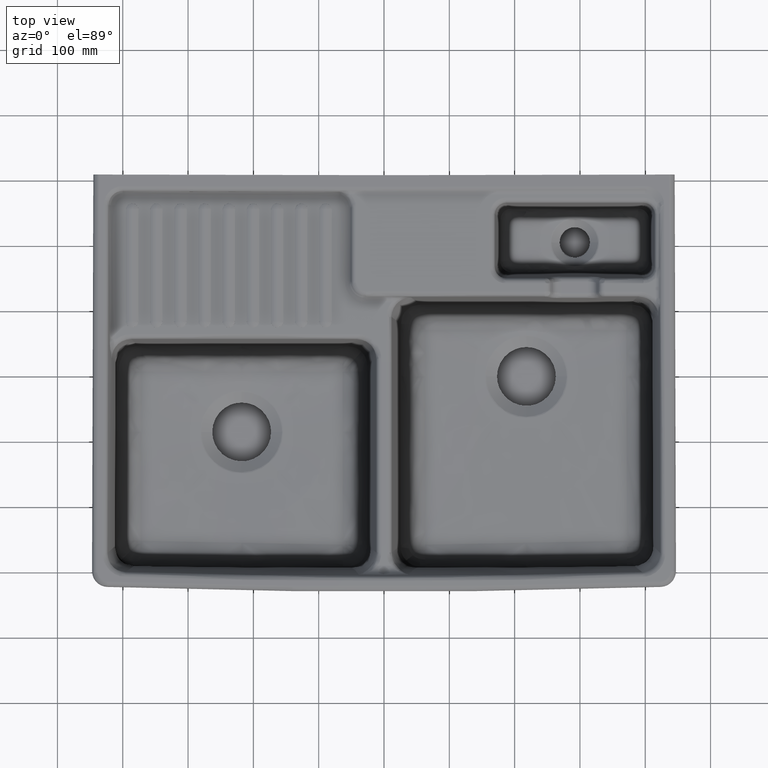
[diagram: clean part render]
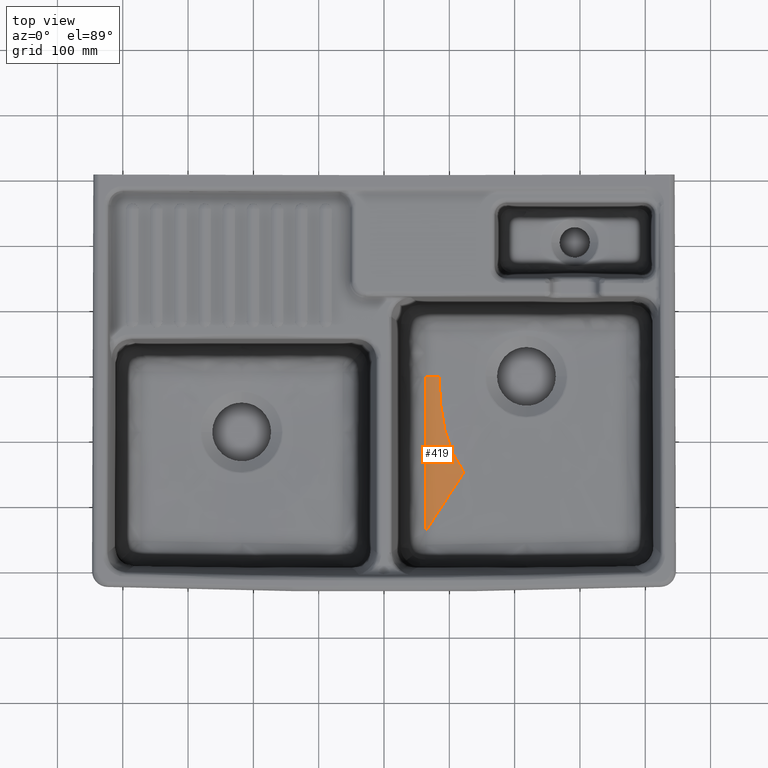
[diagram: same view with one face highlighted and labeled with its STEP entity id]
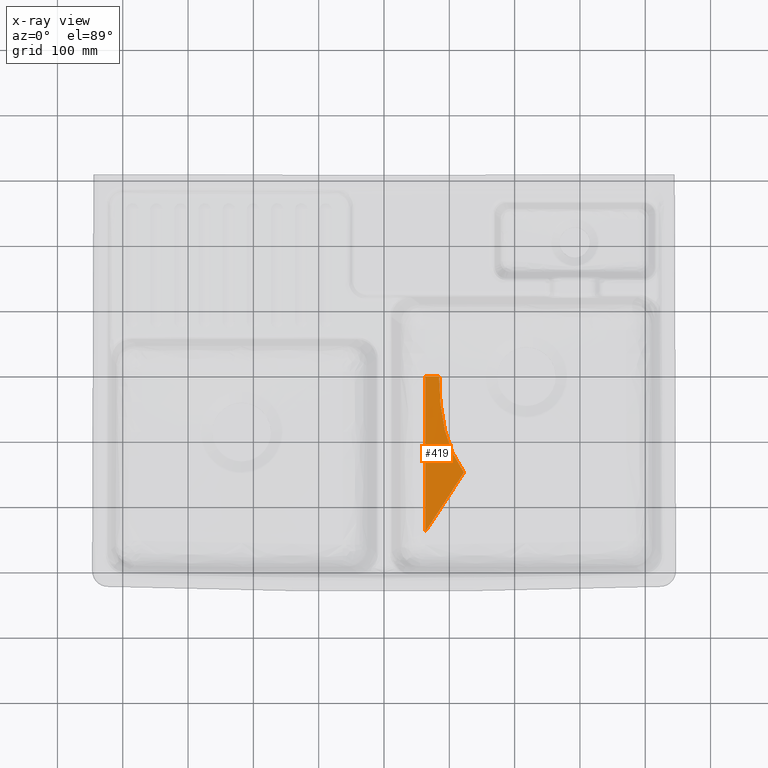
[diagram: x-ray of the same camera — body ghosted, the highlighted face saturated]
A machine part, top view. The second image highlights one B-rep face of the part: STEP entity #419.
The next image is the same camera in x-ray: the body ghosted, the highlighted face saturated — about 0% of this face is hidden behind the body in this view.
In plain terms, the highlighted face is a freeform B-spline surface patch.
Its self-contained STEP definition (entity closure, byte-faithful):
#419=ADVANCED_FACE('',(#1278),#850,.T.);
#850=B_SPLINE_SURFACE_WITH_KNOTS('',4,3,((#24365,#24366,#24367,#24368),
(#24369,#24370,#24371,#24372),(#24373,#24374,#24375,#24376),(#24377,#24378,
#24379,#24380),(#24381,#24382,#24383,#24384)),.UNSPECIFIED.,.F.,.F.,.F.,
(5,5),(4,4),(0.,1.),(0.,1.),.UNSPECIFIED.);
#1278=FACE_OUTER_BOUND('',#1729,.T.);
#1729=EDGE_LOOP('',(#3139,#3140,#3141,#3142));
#3139=ORIENTED_EDGE('',*,*,#5768,.F.);
#3140=ORIENTED_EDGE('',*,*,#5769,.F.);
#3141=ORIENTED_EDGE('',*,*,#5480,.T.);
#3142=ORIENTED_EDGE('',*,*,#5486,.T.);
#4428=VERTEX_POINT('',#9861);
#4597=VERTEX_POINT('',#17666);
#4600=VERTEX_POINT('',#17776);
#4761=VERTEX_POINT('',#24360);
#5480=EDGE_CURVE('',#4597,#4428,#6675,.T.);
#5486=EDGE_CURVE('',#4428,#4600,#6681,.T.);
#5768=EDGE_CURVE('',#4761,#4600,#6963,.T.);
#5769=EDGE_CURVE('',#4597,#4761,#6964,.T.);
#6675=B_SPLINE_CURVE_WITH_KNOTS('',4,(#17661,#17662,#17663,#17664,#17665),
 .UNSPECIFIED.,.F.,.F.,(5,5),(0.,1.),.UNSPECIFIED.);
#6681=B_SPLINE_CURVE_WITH_KNOTS('',3,(#17778,#17779,#17780,#17781),
 .UNSPECIFIED.,.F.,.F.,(4,4),(0.,1.),.UNSPECIFIED.);
#6963=B_SPLINE_CURVE_WITH_KNOTS('',3,(#24342,#24343,#24344,#24345,#24346,
#24347,#24348,#24349,#24350,#24351,#24352,#24353,#24354,#24355,#24356,#24357,
#24358,#24359),.UNSPECIFIED.,.F.,.F.,(4,2,2,2,2,2,2,2,4),(0.,0.125,0.25,
0.375,0.5,0.625,0.75,0.875,1.),.UNSPECIFIED.);
#6964=B_SPLINE_CURVE_WITH_KNOTS('',3,(#24361,#24362,#24363,#24364),
 .UNSPECIFIED.,.F.,.F.,(4,4),(0.,1.),.UNSPECIFIED.);
#9861=CARTESIAN_POINT('',(84.39746,0.,-180.5));
#17661=CARTESIAN_POINT('',(122.35904,-147.10867,-180.5));
#17662=CARTESIAN_POINT('',(99.56619,-117.62495,-180.5));
#17663=CARTESIAN_POINT('',(88.18301,-78.33304,-180.5));
#17664=CARTESIAN_POINT('',(84.39746,-36.65178,-180.5));
#17665=CARTESIAN_POINT('',(84.39746,0.,-180.5));
#17666=CARTESIAN_POINT('',(122.35904,-147.10867,-180.5));
#17776=CARTESIAN_POINT('',(63.2058318317353,0.,-179.158804507215));
#17778=CARTESIAN_POINT('',(84.39746,0.,-180.5));
#17779=CARTESIAN_POINT('',(77.3335780240001,0.,-180.052932056));
#17780=CARTESIAN_POINT('',(70.2697004532674,0.,-179.605865580422));
#17781=CARTESIAN_POINT('',(63.2058255997034,0.,-179.158800573267));
#24342=CARTESIAN_POINT('',(63.2060037305666,-238.093979304146,-177.822298075582));
#24343=CARTESIAN_POINT('',(63.2059886921296,-228.238625039033,-177.962921108554));
#24344=CARTESIAN_POINT('',(63.2059832484374,-219.245785110654,-178.082888659868));
#24345=CARTESIAN_POINT('',(63.2059731494818,-200.992840910293,-178.297266756222));
#24346=CARTESIAN_POINT('',(63.205968655538,-191.74803571615,-178.391596720754));
#24347=CARTESIAN_POINT('',(63.2059549996318,-172.363077120166,-178.562503577156));
#24348=CARTESIAN_POINT('',(63.2059459989727,-162.23822276589,-178.63899988838));
#24349=CARTESIAN_POINT('',(63.2059256557875,-141.339721041235,-178.776671926369));
#24350=CARTESIAN_POINT('',(63.2059144745482,-130.581372688148,-178.83776707235));
#24351=CARTESIAN_POINT('',(63.2058950401036,-109.078106240299,-178.944115244045));
#24352=CARTESIAN_POINT('',(63.2058869481686,-98.3484871325551,-178.989287688839));
#24353=CARTESIAN_POINT('',(63.2058770676267,-77.5216004679957,-179.062732323859));
#24354=CARTESIAN_POINT('',(63.2058754402737,-67.4396318679251,-179.090923933028));
#24355=CARTESIAN_POINT('',(63.205875131719,-48.024696373038,-179.131229593642));
#24356=CARTESIAN_POINT('',(63.2058766117549,-38.7070284046931,-179.143263063894));
#24357=CARTESIAN_POINT('',(63.2058675909606,-19.9761049410546,-179.156373408418));
#24358=CARTESIAN_POINT('',(63.2058572513515,-10.5781483419593,-179.15736970136));
#24359=CARTESIAN_POINT('',(63.2058252544416,0.,-179.158806028572));
#24360=CARTESIAN_POINT('',(63.2059022439056,-238.09404217601,-177.819744668766));
#24361=CARTESIAN_POINT('',(122.359032934045,-147.108680859822,-180.5));
#24362=CARTESIAN_POINT('',(102.645729259859,-177.430389106227,-179.338226612385));
#24363=CARTESIAN_POINT('',(82.9279863410161,-207.758928018759,-178.443964070523));
#24364=CARTESIAN_POINT('',(63.2058041824424,-238.094297590928,-177.81721214088));
#24365=CARTESIAN_POINT('',(122.35904,-147.10867,-180.5));
#24366=CARTESIAN_POINT('',(91.28229,-194.90887,-178.66853));
#24367=CARTESIAN_POINT('',(60.19452,-242.72606,-177.50188));
#24368=CARTESIAN_POINT('',(29.0957,-290.56021,-177.00003));
#24369=CARTESIAN_POINT('',(99.56619,-117.62495,-180.5));
#24370=CARTESIAN_POINT('',(76.05682,-151.05093,-178.69913));
#24371=CARTESIAN_POINT('',(52.6087,-184.47147,-179.29433));
#24372=CARTESIAN_POINT('',(29.0957,-217.92015,-177.00003));
#24373=CARTESIAN_POINT('',(88.18301,-78.33304,-180.5));
#24374=CARTESIAN_POINT('',(68.48987,-100.6422,-179.49791));
#24375=CARTESIAN_POINT('',(48.7941,-122.95789,-178.33125));
#24376=CARTESIAN_POINT('',(29.0957,-145.28011,-177.00003));
#24377=CARTESIAN_POINT('',(84.39746,-36.65178,-180.5));
#24378=CARTESIAN_POINT('',(65.96353,-48.64363,-179.33333));
#24379=CARTESIAN_POINT('',(47.52963,-60.63972,-178.16667));
#24380=CARTESIAN_POINT('',(29.09573,-72.64006,-177.00002));
#24381=CARTESIAN_POINT('',(84.39746,0.,-180.5));
#24382=CARTESIAN_POINT('',(65.96353,0.,-179.33333));
#24383=CARTESIAN_POINT('',(47.52963,0.,-178.16667));
#24384=CARTESIAN_POINT('',(29.09573,0.,-177.00002));